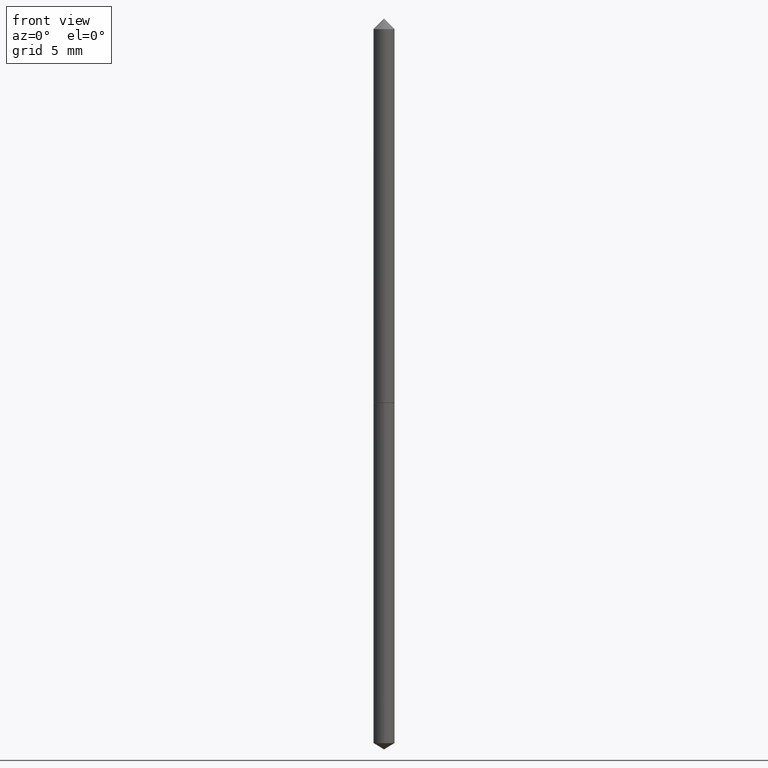
[diagram: clean part render]
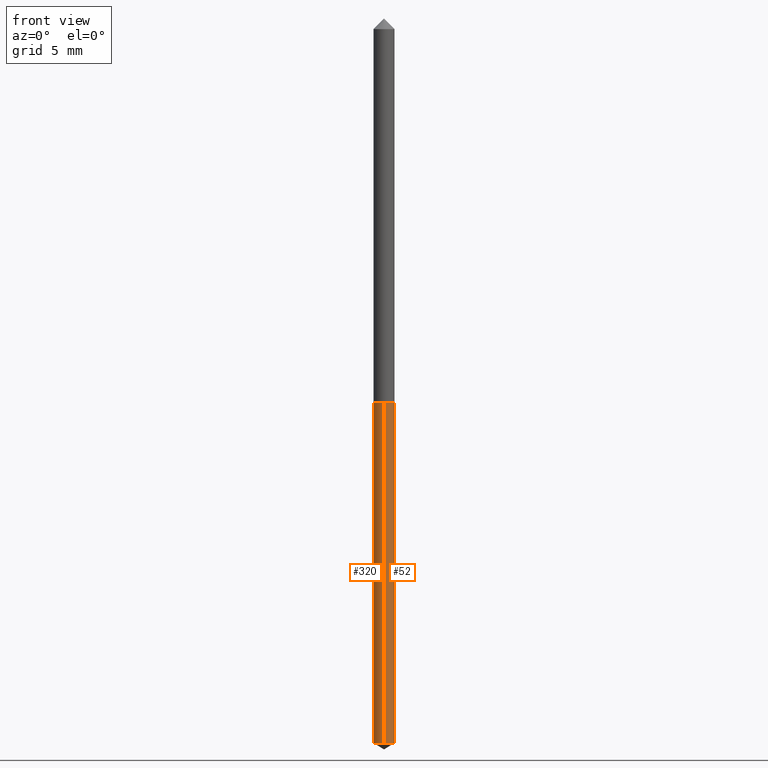
[diagram: same view with one multi-face feature highlighted, each face labeled with its STEP entity id]
A machine part, front view. The highlighted faces form ONE feature: a constant-radius fillet chain: 2 tangent blend faces with common blend radius 0.5461 mm. The faces share edges in the B-rep.
Their STEP definitions:
[1] entity #320 (Cylinder):
#6 = AXIS2_PLACEMENT_3D ( 'NONE', #113, #283, #38 ) ;
#13 = DIRECTION ( 'NONE',  ( -2.445485687513821963E-29, 3.491457163819642669E-15, 1.000000000000000000 ) ) ;
#38 = DIRECTION ( 'NONE',  ( -6.982962677686265922E-15, -1.000000000000000000, 0.000000000000000000 ) ) ;
#39 = AXIS2_PLACEMENT_3D ( 'NONE', #48, #13, #290 ) ;
#44 = DIRECTION ( 'NONE',  ( -2.445485687513821683E-29, 3.491457163819642275E-15, 1.000000000000000000 ) ) ;
#48 = CARTESIAN_POINT ( 'NONE',  ( 1.939256763304813756E-29, -2.768744701702615101E-15, -0.7930000000000001492 ) ) ;
#59 = CARTESIAN_POINT ( 'NONE',  ( -1.501336975702353539E-16, -0.02150000000000277037, -0.7930000000000000382 ) ) ;
#68 = CYLINDRICAL_SURFACE ( 'NONE', #80, 0.02150000000000000175 ) ;
#71 = VERTEX_POINT ( 'NONE', #268 ) ;
#72 = EDGE_CURVE ( 'NONE', #230, #71, #270, .T. ) ;
#77 = ORIENTED_EDGE ( 'NONE', *, *, #289, .F. ) ;
#80 = AXIS2_PLACEMENT_3D ( 'NONE', #160, #350, #302 ) ;
#96 = ORIENTED_EDGE ( 'NONE', *, *, #228, .T. ) ;
#113 = CARTESIAN_POINT ( 'NONE',  ( 3.636623129430600591E-29, -5.192100515598744644E-15, -1.487081496690907834 ) ) ;
#114 = CIRCLE ( 'NONE', #6, 0.02150000000000000175 ) ;
#122 = ORIENTED_EDGE ( 'NONE', *, *, #72, .F. ) ;
#128 = ORIENTED_EDGE ( 'NONE', *, *, #293, .T. ) ;
#130 = CARTESIAN_POINT ( 'NONE',  ( -1.501336975702183934E-16, -0.02150000000000519898, -1.487081496690907834 ) ) ;
#160 = CARTESIAN_POINT ( 'NONE',  ( 1.939256763304813756E-29, -2.768744701702615101E-15, -0.7930000000000001492 ) ) ;
#220 = DIRECTION ( 'NONE',  ( -2.445485687513821683E-29, 3.491457163819642275E-15, 1.000000000000000000 ) ) ;
#228 = EDGE_CURVE ( 'NONE', #230, #331, #114, .T. ) ;
#230 = VERTEX_POINT ( 'NONE', #257 ) ;
#257 = CARTESIAN_POINT ( 'NONE',  ( 1.527666881884579139E-16, 0.02149999999999481493, -1.487081496690907834 ) ) ;
#262 = CARTESIAN_POINT ( 'NONE',  ( -1.501336975702353539E-16, -0.02150000000000277037, -0.7930000000000000382 ) ) ;
#264 = EDGE_LOOP ( 'NONE', ( #122, #96, #128, #77 ) ) ;
#268 = CARTESIAN_POINT ( 'NONE',  ( 1.527666881884579879E-16, 0.02149999999999722966, -0.7930000000000002602 ) ) ;
#270 = LINE ( 'NONE', #273, #271 ) ;
#271 = VECTOR ( 'NONE', #220, 39.37007874015748143 ) ;
#272 = VECTOR ( 'NONE', #44, 39.37007874015748143 ) ;
#273 = CARTESIAN_POINT ( 'NONE',  ( 1.527666881884409041E-16, 0.02149999999999722966, -0.7930000000000002602 ) ) ;
#281 = FACE_OUTER_BOUND ( 'NONE', #264, .T. ) ;
#283 = DIRECTION ( 'NONE',  ( -2.445485687513821963E-29, 3.491457163819642669E-15, 1.000000000000000000 ) ) ;
#289 = EDGE_CURVE ( 'NONE', #71, #334, #341, .T. ) ;
#290 = DIRECTION ( 'NONE',  ( -6.982962677686265922E-15, -1.000000000000000000, 6.353134868986658336E-15 ) ) ;
#291 = LINE ( 'NONE', #262, #272 ) ;
#293 = EDGE_CURVE ( 'NONE', #331, #334, #291, .T. ) ;
#302 = DIRECTION ( 'NONE',  ( -6.982962677686265922E-15, -1.000000000000000000, 6.353134868986658336E-15 ) ) ;
#320 = ADVANCED_FACE ( 'NONE', ( #281 ), #68, .T. ) ;
#331 = VERTEX_POINT ( 'NONE', #130 ) ;
#334 = VERTEX_POINT ( 'NONE', #59 ) ;
#341 = CIRCLE ( 'NONE', #39, 0.02150000000000000175 ) ;
#350 = DIRECTION ( 'NONE',  ( -2.445485687513821963E-29, 3.491457163819642669E-15, 1.000000000000000000 ) ) ;
[2] entity #52 (Cylinder):
#17 = ORIENTED_EDGE ( 'NONE', *, *, #72, .T. ) ;
#29 = CYLINDRICAL_SURFACE ( 'NONE', #361, 0.02150000000000000175 ) ;
#44 = DIRECTION ( 'NONE',  ( -2.445485687513821683E-29, 3.491457163819642275E-15, 1.000000000000000000 ) ) ;
#47 = CIRCLE ( 'NONE', #241, 0.02150000000000000175 ) ;
#52 = ADVANCED_FACE ( 'NONE', ( #57 ), #29, .T. ) ;
#57 = FACE_OUTER_BOUND ( 'NONE', #172, .T. ) ;
#59 = CARTESIAN_POINT ( 'NONE',  ( -1.501336975702353539E-16, -0.02150000000000277037, -0.7930000000000000382 ) ) ;
#62 = ORIENTED_EDGE ( 'NONE', *, *, #293, .F. ) ;
#71 = VERTEX_POINT ( 'NONE', #268 ) ;
#72 = EDGE_CURVE ( 'NONE', #230, #71, #270, .T. ) ;
#101 = DIRECTION ( 'NONE',  ( -6.982962677686265922E-15, -1.000000000000000000, 6.353134868986658336E-15 ) ) ;
#110 = DIRECTION ( 'NONE',  ( -2.445485687513821963E-29, 3.491457163819642669E-15, 1.000000000000000000 ) ) ;
#130 = CARTESIAN_POINT ( 'NONE',  ( -1.501336975702183934E-16, -0.02150000000000519898, -1.487081496690907834 ) ) ;
#149 = CIRCLE ( 'NONE', #207, 0.02150000000000000175 ) ;
#157 = CARTESIAN_POINT ( 'NONE',  ( 1.939256763304813756E-29, -2.768744701702615101E-15, -0.7930000000000001492 ) ) ;
#166 = DIRECTION ( 'NONE',  ( -6.982962677686265922E-15, -1.000000000000000000, 6.353134868986658336E-15 ) ) ;
#172 = EDGE_LOOP ( 'NONE', ( #183, #17, #347, #62 ) ) ;
#181 = DIRECTION ( 'NONE',  ( -2.445485687513821963E-29, 3.491457163819642669E-15, 1.000000000000000000 ) ) ;
#183 = ORIENTED_EDGE ( 'NONE', *, *, #363, .T. ) ;
#204 = CARTESIAN_POINT ( 'NONE',  ( 1.939256763304813756E-29, -2.768744701702615101E-15, -0.7930000000000001492 ) ) ;
#207 = AXIS2_PLACEMENT_3D ( 'NONE', #204, #110, #166 ) ;
#220 = DIRECTION ( 'NONE',  ( -2.445485687513821683E-29, 3.491457163819642275E-15, 1.000000000000000000 ) ) ;
#230 = VERTEX_POINT ( 'NONE', #257 ) ;
#241 = AXIS2_PLACEMENT_3D ( 'NONE', #267, #265, #324 ) ;
#257 = CARTESIAN_POINT ( 'NONE',  ( 1.527666881884579139E-16, 0.02149999999999481493, -1.487081496690907834 ) ) ;
#262 = CARTESIAN_POINT ( 'NONE',  ( -1.501336975702353539E-16, -0.02150000000000277037, -0.7930000000000000382 ) ) ;
#265 = DIRECTION ( 'NONE',  ( -2.445485687513821963E-29, 3.491457163819642669E-15, 1.000000000000000000 ) ) ;
#267 = CARTESIAN_POINT ( 'NONE',  ( 3.636623129430600591E-29, -5.192100515598744644E-15, -1.487081496690907834 ) ) ;
#268 = CARTESIAN_POINT ( 'NONE',  ( 1.527666881884579879E-16, 0.02149999999999722966, -0.7930000000000002602 ) ) ;
#270 = LINE ( 'NONE', #273, #271 ) ;
#271 = VECTOR ( 'NONE', #220, 39.37007874015748143 ) ;
#272 = VECTOR ( 'NONE', #44, 39.37007874015748143 ) ;
#273 = CARTESIAN_POINT ( 'NONE',  ( 1.527666881884409041E-16, 0.02149999999999722966, -0.7930000000000002602 ) ) ;
#291 = LINE ( 'NONE', #262, #272 ) ;
#293 = EDGE_CURVE ( 'NONE', #331, #334, #291, .T. ) ;
#301 = EDGE_CURVE ( 'NONE', #334, #71, #149, .T. ) ;
#324 = DIRECTION ( 'NONE',  ( -6.982962677686265922E-15, -1.000000000000000000, 0.000000000000000000 ) ) ;
#331 = VERTEX_POINT ( 'NONE', #130 ) ;
#334 = VERTEX_POINT ( 'NONE', #59 ) ;
#347 = ORIENTED_EDGE ( 'NONE', *, *, #301, .F. ) ;
#361 = AXIS2_PLACEMENT_3D ( 'NONE', #157, #181, #101 ) ;
#363 = EDGE_CURVE ( 'NONE', #331, #230, #47, .T. ) ;